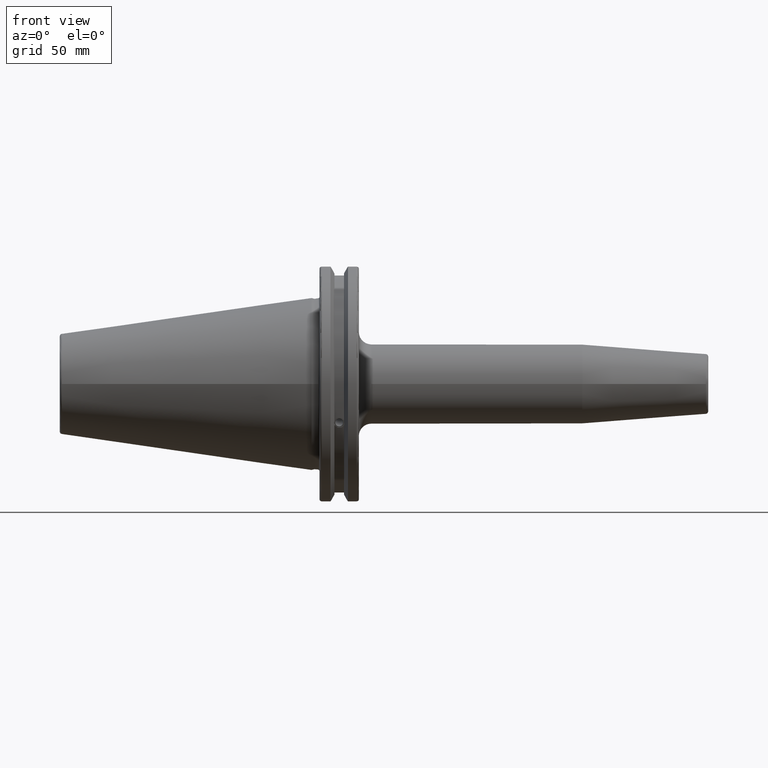
[diagram: clean part render]
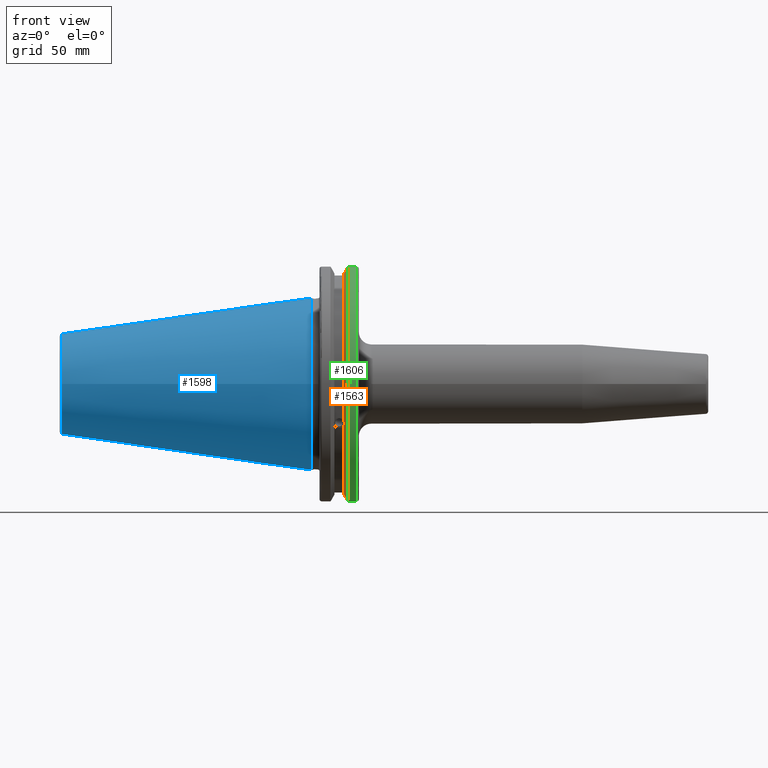
[diagram: same view with three faces highlighted in distinct colors, each labeled with its STEP entity id]
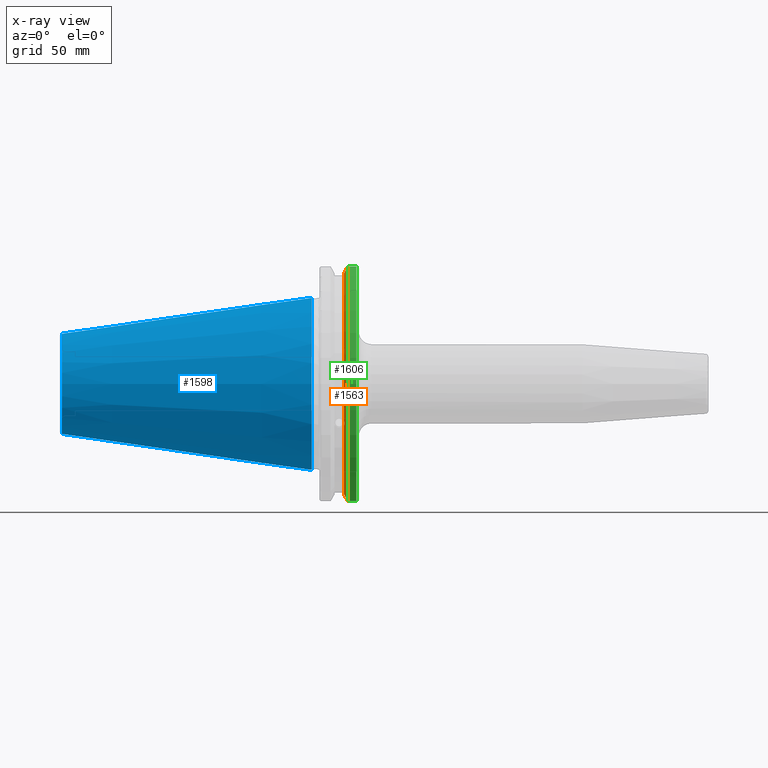
[diagram: x-ray of the same camera — body ghosted, the three highlighted faces saturated]
A machine part, front view with three faces highlighted in distinct colors.
The next image is the same camera in x-ray (body ghosted, the three faces saturated) — at least one of them is partly hidden behind the body in this view.
Their STEP definitions:

[orange] entity #1563 — the highlighted conical surface has half-angle 60 deg.
#15=(
BOUNDED_CURVE()
B_SPLINE_CURVE(2,(#2660,#2661,#2662),.UNSPECIFIED.,.F.,.F.)
B_SPLINE_CURVE_WITH_KNOTS((3,3),(0.,0.275823910673374),.UNSPECIFIED.)
CURVE()
GEOMETRIC_REPRESENTATION_ITEM()
RATIONAL_B_SPLINE_CURVE((1.,1.00038235574978,1.00012873636953))
REPRESENTATION_ITEM('')
);
#16=(
BOUNDED_CURVE()
B_SPLINE_CURVE(2,(#2664,#2665,#2666),.UNSPECIFIED.,.F.,.F.)
B_SPLINE_CURVE_WITH_KNOTS((3,3),(0.,0.0648240472896156),.UNSPECIFIED.)
CURVE()
GEOMETRIC_REPRESENTATION_ITEM()
RATIONAL_B_SPLINE_CURVE((1.,1.00011477674884,1.00019140646027))
REPRESENTATION_ITEM('')
);
#17=(
BOUNDED_CURVE()
B_SPLINE_CURVE(2,(#2670,#2671,#2672),.UNSPECIFIED.,.F.,.F.)
B_SPLINE_CURVE_WITH_KNOTS((3,3),(0.325260944932494,0.3900849922222),
 .UNSPECIFIED.)
CURVE()
GEOMETRIC_REPRESENTATION_ITEM()
RATIONAL_B_SPLINE_CURVE((1.00019140645961,1.00011477674844,1.))
REPRESENTATION_ITEM('')
);
#18=(
BOUNDED_CURVE()
B_SPLINE_CURVE(2,(#2674,#2675,#2676),.UNSPECIFIED.,.F.,.F.)
B_SPLINE_CURVE_WITH_KNOTS((3,3),(0.0558332664531015,0.331657177124503),
 .UNSPECIFIED.)
CURVE()
GEOMETRIC_REPRESENTATION_ITEM()
RATIONAL_B_SPLINE_CURVE((1.00012873636668,1.00038235574129,1.))
REPRESENTATION_ITEM('')
);
#39=B_SPLINE_CURVE_WITH_KNOTS('',3,(#2569,#2570,#2571,#2572,#2573,#2574,
#2575,#2576),.UNSPECIFIED.,.F.,.F.,(4,2,2,4),(0.42671286835872,0.441644498666905,
0.480313313223129,0.518982127779353),.UNSPECIFIED.);
#43=B_SPLINE_CURVE_WITH_KNOTS('',3,(#2631,#2632,#2633,#2634,#2635,#2636,
#2637,#2638),.UNSPECIFIED.,.F.,.F.,(4,2,2,4),(0.518982127779353,0.557650942335576,
0.5963197568918,0.611251387199985),.UNSPECIFIED.);
#75=CONICAL_SURFACE('',#1713,47.8172386482472,1.0471975511966);
#402=FACE_OUTER_BOUND('',#506,.T.);
#506=EDGE_LOOP('',(#1191,#1192,#1193,#1194,#1195,#1196,#1197,#1198,#1199));
#612=CIRCLE('',#1714,46.4219772964944);
#613=CIRCLE('',#1715,49.2125);
#614=CIRCLE('',#1716,46.4219772964944);
#708=VERTEX_POINT('',#2566);
#709=VERTEX_POINT('',#2568);
#716=VERTEX_POINT('',#2629);
#722=VERTEX_POINT('',#2657);
#723=VERTEX_POINT('',#2659);
#724=VERTEX_POINT('',#2663);
#725=VERTEX_POINT('',#2667);
#726=VERTEX_POINT('',#2669);
#727=VERTEX_POINT('',#2673);
#883=EDGE_CURVE('',#709,#708,#39,.T.);
#891=EDGE_CURVE('',#708,#716,#43,.T.);
#899=EDGE_CURVE('',#716,#722,#612,.T.);
#900=EDGE_CURVE('',#722,#723,#15,.T.);
#901=EDGE_CURVE('',#724,#723,#16,.T.);
#902=EDGE_CURVE('',#725,#724,#613,.T.);
#903=EDGE_CURVE('',#726,#725,#17,.T.);
#904=EDGE_CURVE('',#726,#727,#18,.T.);
#905=EDGE_CURVE('',#727,#709,#614,.T.);
#1191=ORIENTED_EDGE('',*,*,#883,.T.);
#1192=ORIENTED_EDGE('',*,*,#891,.T.);
#1193=ORIENTED_EDGE('',*,*,#899,.T.);
#1194=ORIENTED_EDGE('',*,*,#900,.T.);
#1195=ORIENTED_EDGE('',*,*,#901,.F.);
#1196=ORIENTED_EDGE('',*,*,#902,.F.);
#1197=ORIENTED_EDGE('',*,*,#903,.F.);
#1198=ORIENTED_EDGE('',*,*,#904,.T.);
#1199=ORIENTED_EDGE('',*,*,#905,.T.);
#1563=ADVANCED_FACE('',(#402),#75,.T.);
#1713=AXIS2_PLACEMENT_3D('',#2656,#1987,#1988);
#1714=AXIS2_PLACEMENT_3D('',#2658,#1989,#1990);
#1715=AXIS2_PLACEMENT_3D('',#2668,#1991,#1992);
#1716=AXIS2_PLACEMENT_3D('',#2677,#1993,#1994);
#1987=DIRECTION('center_axis',(1.,0.,0.));
#1988=DIRECTION('ref_axis',(0.,-1.,-1.22464679914735E-16));
#1989=DIRECTION('center_axis',(1.,0.,0.));
#1990=DIRECTION('ref_axis',(0.,0.,-1.));
#1991=DIRECTION('center_axis',(1.,0.,0.));
#1992=DIRECTION('ref_axis',(0.,0.,-1.));
#1993=DIRECTION('center_axis',(1.,0.,0.));
#1994=DIRECTION('ref_axis',(0.,0.,-1.));
#2566=CARTESIAN_POINT('',(13.2341,-43.923494649906,-15.9868446375166));
#2568=CARTESIAN_POINT('',(13.0491,-43.9096390749305,-15.0646464421033));
#2569=CARTESIAN_POINT('Ctrl Pts',(13.0491,-43.9096390749305,-15.0646464421033));
#2570=CARTESIAN_POINT('Ctrl Pts',(13.0660815609661,-43.9250360001461,-15.1104047527575));
#2571=CARTESIAN_POINT('Ctrl Pts',(13.0821132459668,-43.9385582852181,-15.1564111356409));
#2572=CARTESIAN_POINT('Ctrl Pts',(13.1358132615496,-43.9797830409459,-15.3217566390708));
#2573=CARTESIAN_POINT('Ctrl Pts',(13.1719838933644,-43.9989016655819,-15.4570249042868));
#2574=CARTESIAN_POINT('Ctrl Pts',(13.2212913174802,-43.9931221605126,-15.7289849146254));
#2575=CARTESIAN_POINT('Ctrl Pts',(13.2341,-43.9675796948952,-15.8657219718732));
#2576=CARTESIAN_POINT('Ctrl Pts',(13.2341,-43.923494649906,-15.9868446375166));
#2629=CARTESIAN_POINT('',(13.0491,-43.3201030900029,-16.6843832486479));
#2631=CARTESIAN_POINT('Ctrl Pts',(13.2341,-43.923494649906,-15.9868446375166));
#2632=CARTESIAN_POINT('Ctrl Pts',(13.2341,-43.8794096049169,-16.10796730316));
#2633=CARTESIAN_POINT('Ctrl Pts',(13.2212913174802,-43.8110833825827,-16.2291323464527));
#2634=CARTESIAN_POINT('Ctrl Pts',(13.1719838933644,-43.6406982153492,-16.441180795372));
#2635=CARTESIAN_POINT('Ctrl Pts',(13.1358132615496,-43.5391037343221,-16.5325130832406));
#2636=CARTESIAN_POINT('Ctrl Pts',(13.0821132459668,-43.4012416983557,-16.6326763251437));
#2637=CARTESIAN_POINT('Ctrl Pts',(13.0660815609661,-43.3613106941341,-16.6592273018006));
#2638=CARTESIAN_POINT('Ctrl Pts',(13.0491,-43.3201030900029,-16.6843832486479));
#2656=CARTESIAN_POINT('Origin',(13.8546545170244,0.,0.));
#2657=CARTESIAN_POINT('',(13.0491,-12.95,-44.5791147973604));
#2658=CARTESIAN_POINT('Origin',(13.0491,0.,0.));
#2659=CARTESIAN_POINT('',(14.3818103943757,-12.95,-46.9780755322917));
#2660=CARTESIAN_POINT('Ctrl Pts',(13.0491,-12.95,-44.5791147973604));
#2661=CARTESIAN_POINT('Ctrl Pts',(13.697995509466,-12.95,-45.749496680259));
#2662=CARTESIAN_POINT('Ctrl Pts',(14.3818103943757,-12.95,-46.9780755322917));
#2663=CARTESIAN_POINT('',(14.6602090340487,-13.4317035994433,-47.3440544806494));
#2664=CARTESIAN_POINT('Ctrl Pts',(14.6602090340487,-13.4317035994433,-47.3440544806494));
#2665=CARTESIAN_POINT('Ctrl Pts',(14.5199310333617,-13.1896660169964,-47.1601640966263));
#2666=CARTESIAN_POINT('Ctrl Pts',(14.3818103943757,-12.95,-46.9780755322917));
#2667=CARTESIAN_POINT('',(14.6602090340487,-13.4317035994433,47.3440544806494));
#2668=CARTESIAN_POINT('Origin',(14.6602090340487,0.,0.));
#2669=CARTESIAN_POINT('',(14.3818103943757,-12.95,46.9780755322918));
#2670=CARTESIAN_POINT('Ctrl Pts',(14.3818103943757,-12.95,46.9780755322918));
#2671=CARTESIAN_POINT('Ctrl Pts',(14.5199310333617,-13.1896660169966,47.1601640966264));
#2672=CARTESIAN_POINT('Ctrl Pts',(14.6602090340487,-13.4317035994433,47.3440544806494));
#2673=CARTESIAN_POINT('',(13.0491,-12.95,44.5791147973604));
#2674=CARTESIAN_POINT('Ctrl Pts',(14.3818103943757,-12.95,46.9780755322918));
#2675=CARTESIAN_POINT('Ctrl Pts',(13.6979955094846,-12.95,45.7494966802924));
#2676=CARTESIAN_POINT('Ctrl Pts',(13.0491,-12.95,44.5791147973604));
#2677=CARTESIAN_POINT('Origin',(13.0491,0.,0.));

[blue] entity #1598 — the highlighted conical surface has half-angle 8.297 deg.
#79=CONICAL_SURFACE('',#1785,27.5166666666666,0.14481249823894);
#163=LINE('',#3162,#261);
#261=VECTOR('',#2180,27.5166666666666);
#437=FACE_OUTER_BOUND('',#549,.T.);
#549=EDGE_LOOP('',(#1394,#1395,#1396,#1397,#1398));
#643=CIRCLE('',#1779,20.233121911427);
#644=CIRCLE('',#1780,20.233121911427);
#648=CIRCLE('',#1786,34.925);
#803=VERTEX_POINT('',#3149);
#804=VERTEX_POINT('',#3150);
#807=VERTEX_POINT('',#3160);
#1015=EDGE_CURVE('',#803,#804,#643,.T.);
#1016=EDGE_CURVE('',#804,#803,#644,.T.);
#1020=EDGE_CURVE('',#807,#807,#648,.T.);
#1021=EDGE_CURVE('',#807,#804,#163,.T.);
#1394=ORIENTED_EDGE('',*,*,#1020,.F.);
#1395=ORIENTED_EDGE('',*,*,#1021,.T.);
#1396=ORIENTED_EDGE('',*,*,#1015,.F.);
#1397=ORIENTED_EDGE('',*,*,#1016,.F.);
#1398=ORIENTED_EDGE('',*,*,#1021,.F.);
#1598=ADVANCED_FACE('',(#437),#79,.T.);
#1779=AXIS2_PLACEMENT_3D('',#3151,#2164,#2165);
#1780=AXIS2_PLACEMENT_3D('',#3152,#2166,#2167);
#1785=AXIS2_PLACEMENT_3D('',#3159,#2176,#2177);
#1786=AXIS2_PLACEMENT_3D('',#3161,#2178,#2179);
#2164=DIRECTION('center_axis',(-1.,0.,0.));
#2165=DIRECTION('ref_axis',(0.,-1.,3.06161699786838E-17));
#2166=DIRECTION('center_axis',(-1.,0.,0.));
#2167=DIRECTION('ref_axis',(0.,-1.,3.06161699786838E-17));
#2176=DIRECTION('center_axis',(1.,0.,0.));
#2177=DIRECTION('ref_axis',(0.,1.,0.));
#2178=DIRECTION('center_axis',(1.,0.,0.));
#2179=DIRECTION('ref_axis',(0.,0.,-1.));
#2180=DIRECTION('',(-0.989532981063281,0.144306893071729,1.76724974695192E-17));
#3149=CARTESIAN_POINT('',(-100.744306893072,-2.47784279855872E-15,20.233121911427));
#3150=CARTESIAN_POINT('',(-100.744306893072,-20.233121911427,-2.47784279855872E-15));
#3151=CARTESIAN_POINT('Origin',(-100.744306893072,0.,-3.09730349819841E-15));
#3152=CARTESIAN_POINT('Origin',(-100.744306893072,0.,-3.09730349819841E-15));
#3159=CARTESIAN_POINT('Origin',(-50.8,0.,0.));
#3160=CARTESIAN_POINT('',(-8.88178419700125E-15,-34.925,-4.27707894602213E-15));
#3161=CARTESIAN_POINT('Origin',(0.,0.,0.));
#3162=CARTESIAN_POINT('',(-50.8,-27.5166666666666,-3.3698197756538E-15));

[green] entity #1606 — the highlighted cylindrical surface (partial cylindrical patch) has radius 49.2125 mm, axis along (1, 0, 0).
#174=LINE('',#3187,#272);
#175=LINE('',#3189,#273);
#272=VECTOR('',#2205,10.);
#273=VECTOR('',#2208,10.);
#304=CYLINDRICAL_SURFACE('',#1794,49.2125);
#445=FACE_OUTER_BOUND('',#557,.T.);
#557=EDGE_LOOP('',(#1435,#1436,#1437,#1438));
#613=CIRCLE('',#1715,49.2125);
#639=CIRCLE('',#1766,49.2125);
#724=VERTEX_POINT('',#2663);
#725=VERTEX_POINT('',#2667);
#787=VERTEX_POINT('',#3030);
#788=VERTEX_POINT('',#3039);
#902=EDGE_CURVE('',#725,#724,#613,.T.);
#987=EDGE_CURVE('',#787,#788,#639,.T.);
#1033=EDGE_CURVE('',#788,#724,#174,.T.);
#1034=EDGE_CURVE('',#725,#787,#175,.T.);
#1435=ORIENTED_EDGE('',*,*,#987,.F.);
#1436=ORIENTED_EDGE('',*,*,#1034,.F.);
#1437=ORIENTED_EDGE('',*,*,#902,.T.);
#1438=ORIENTED_EDGE('',*,*,#1033,.F.);
#1606=ADVANCED_FACE('',(#445),#304,.T.);
#1715=AXIS2_PLACEMENT_3D('',#2668,#1991,#1992);
#1766=AXIS2_PLACEMENT_3D('',#3040,#2126,#2127);
#1794=AXIS2_PLACEMENT_3D('',#3188,#2206,#2207);
#1991=DIRECTION('center_axis',(1.,0.,0.));
#1992=DIRECTION('ref_axis',(0.,0.,-1.));
#2126=DIRECTION('center_axis',(1.,0.,0.));
#2127=DIRECTION('ref_axis',(0.,-1.,1.60812264967664E-16));
#2205=DIRECTION('',(-1.,0.,0.));
#2206=DIRECTION('center_axis',(1.,0.,0.));
#2207=DIRECTION('ref_axis',(0.,-1.,1.22464679914735E-16));
#2208=DIRECTION('',(1.,0.,0.));
#2663=CARTESIAN_POINT('',(14.6602090340487,-13.4317035994433,-47.3440544806494));
#2667=CARTESIAN_POINT('',(14.6602090340487,-13.4317035994433,47.3440544806494));
#2668=CARTESIAN_POINT('Origin',(14.6602090340487,0.,0.));
#3030=CARTESIAN_POINT('',(18.05,-13.4317035994433,47.3440544806494));
#3039=CARTESIAN_POINT('',(18.05,-13.4317035994433,-47.3440544806494));
#3040=CARTESIAN_POINT('Origin',(18.05,0.,0.));
#3187=CARTESIAN_POINT('',(16.8551045170244,-13.4317035994433,-47.3440544806494));
#3188=CARTESIAN_POINT('Origin',(16.8551045170244,0.,0.));
#3189=CARTESIAN_POINT('',(16.8551045170244,-13.4317035994433,47.3440544806494));